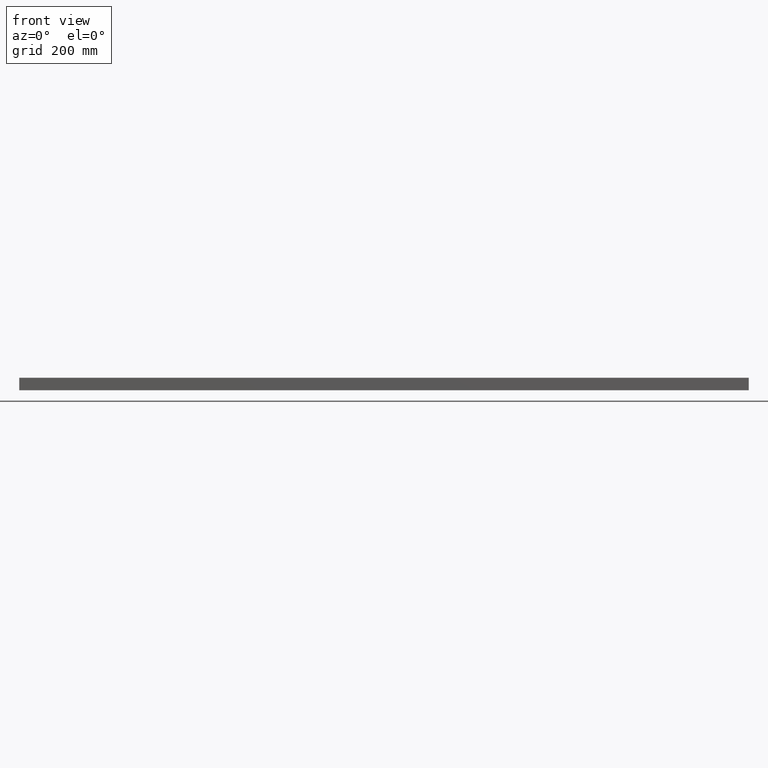
[diagram: clean part render]
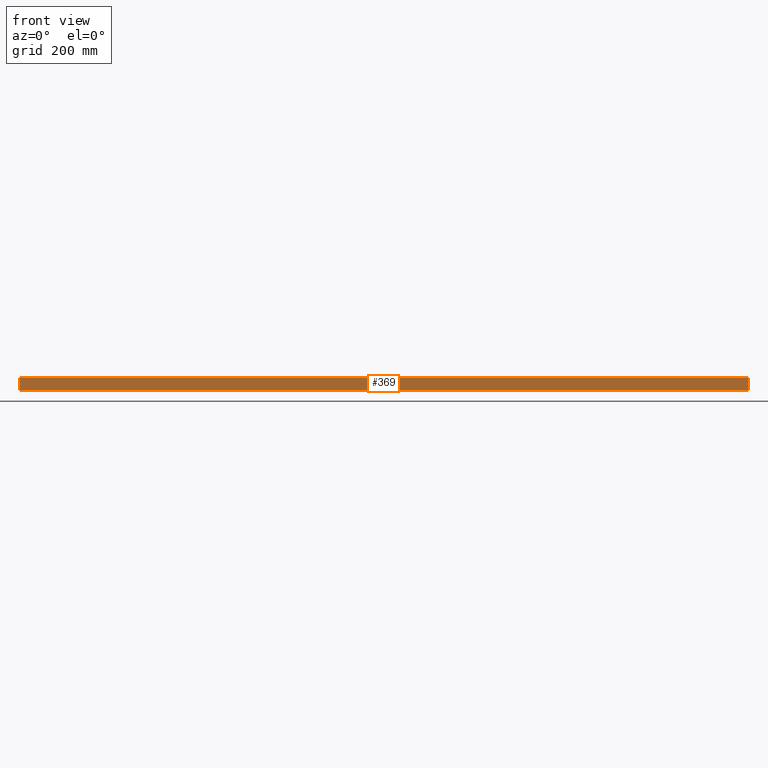
[diagram: same view with one face highlighted and labeled with its STEP entity id]
A machine part, front view. The second image highlights one B-rep face of the part: STEP entity #369.
In plain terms, the highlighted planar face has unit normal (-0, 1, -0).
Its self-contained STEP definition (entity closure, byte-faithful):
#30 = ORIENTED_EDGE ( 'NONE', *, *, #206, .F. ) ;
#36 = CARTESIAN_POINT ( 'NONE',  ( 1322.500000000000000, -94.99999999999960210, -22.49999999999965539 ) ) ;
#40 = CARTESIAN_POINT ( 'NONE',  ( -1322.500000000000000, -95.00000000000022737, 22.50000000000035527 ) ) ;
#44 = EDGE_CURVE ( 'NONE', #366, #196, #204, .T. ) ;
#47 = CARTESIAN_POINT ( 'NONE',  ( 1322.500000000000000, -94.99999999999960210, -22.49999999999965539 ) ) ;
#60 = VECTOR ( 'NONE', #354, 1000.000000000000000 ) ;
#61 = VECTOR ( 'NONE', #252, 1000.000000000000000 ) ;
#70 = EDGE_CURVE ( 'NONE', #366, #285, #146, .T. ) ;
#74 = ORIENTED_EDGE ( 'NONE', *, *, #44, .F. ) ;
#101 = DIRECTION ( 'NONE',  ( 1.000000000000000000, 3.061616997868382648E-16, -0.000000000000000000 ) ) ;
#109 = FACE_OUTER_BOUND ( 'NONE', #324, .T. ) ;
#131 = CARTESIAN_POINT ( 'NONE',  ( -1322.500000000000000, -95.00000000000039790, -22.49999999999965539 ) ) ;
#146 = LINE ( 'NONE', #323, #60 ) ;
#150 = VECTOR ( 'NONE', #290, 1000.000000000000000 ) ;
#171 = AXIS2_PLACEMENT_3D ( 'NONE', #362, #367, #342 ) ;
#175 = ORIENTED_EDGE ( 'NONE', *, *, #329, .T. ) ;
#190 = LINE ( 'NONE', #47, #61 ) ;
#196 = VERTEX_POINT ( 'NONE', #326 ) ;
#200 = VECTOR ( 'NONE', #101, 1000.000000000000000 ) ;
#204 = LINE ( 'NONE', #321, #150 ) ;
#206 = EDGE_CURVE ( 'NONE', #196, #346, #266, .T. ) ;
#219 = CARTESIAN_POINT ( 'NONE',  ( 1322.500000000000000, -94.99999999999941735, 22.50000000000035527 ) ) ;
#252 = DIRECTION ( 'NONE',  ( 0.000000000000000000, 4.009138700035287069E-15, 1.000000000000000000 ) ) ;
#266 = LINE ( 'NONE', #40, #200 ) ;
#275 = PLANE ( 'NONE',  #171 ) ;
#285 = VERTEX_POINT ( 'NONE', #36 ) ;
#290 = DIRECTION ( 'NONE',  ( 0.000000000000000000, 4.009138700035287069E-15, 1.000000000000000000 ) ) ;
#313 = ORIENTED_EDGE ( 'NONE', *, *, #70, .T. ) ;
#321 = CARTESIAN_POINT ( 'NONE',  ( -1322.500000000000000, -95.00000000000039790, -22.49999999999965539 ) ) ;
#323 = CARTESIAN_POINT ( 'NONE',  ( -1322.500000000000000, -95.00000000000039790, -22.49999999999965539 ) ) ;
#324 = EDGE_LOOP ( 'NONE', ( #175, #30, #74, #313 ) ) ;
#326 = CARTESIAN_POINT ( 'NONE',  ( -1322.500000000000000, -95.00000000000022737, 22.50000000000035527 ) ) ;
#329 = EDGE_CURVE ( 'NONE', #285, #346, #190, .T. ) ;
#342 = DIRECTION ( 'NONE',  ( 0.000000000000000000, 4.009138700035287069E-15, 1.000000000000000000 ) ) ;
#346 = VERTEX_POINT ( 'NONE', #219 ) ;
#354 = DIRECTION ( 'NONE',  ( 1.000000000000000000, 3.061616997868382648E-16, -0.000000000000000000 ) ) ;
#362 = CARTESIAN_POINT ( 'NONE',  ( -1322.500000000000000, -95.00000000000039790, -22.49999999999965539 ) ) ;
#366 = VERTEX_POINT ( 'NONE', #131 ) ;
#367 = DIRECTION ( 'NONE',  ( -3.061616997868382648E-16, 1.000000000000000000, -4.009138700035287069E-15 ) ) ;
#369 = ADVANCED_FACE ( 'NONE', ( #109 ), #275, .F. ) ;